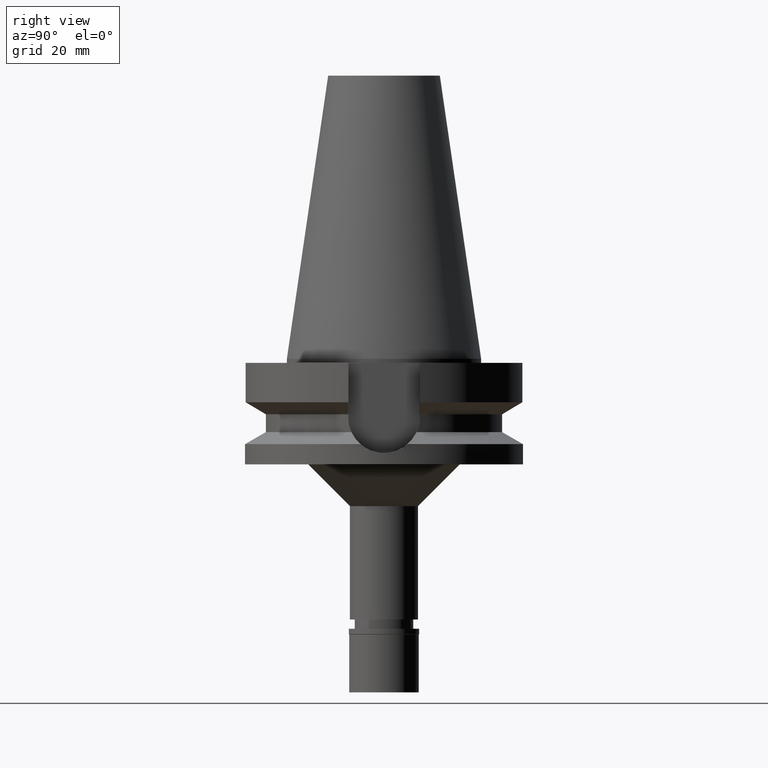
[diagram: clean part render]
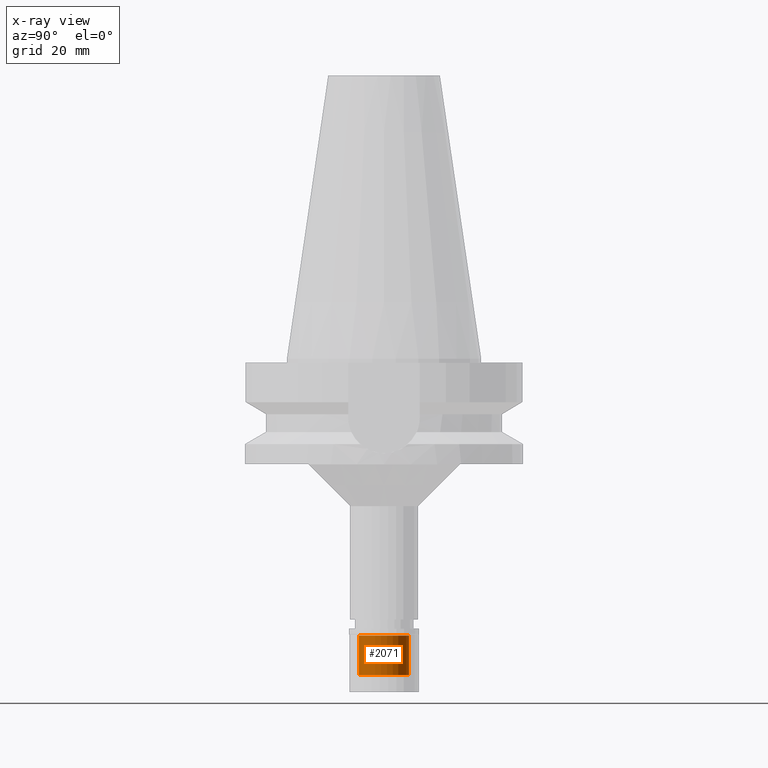
[diagram: x-ray — body ghosted, one internal face saturated and labeled with its STEP entity id]
A machine part, right view, then the same camera in x-ray: the body is ghosted and one INTERNAL B-rep face — a face not visible from any outside direction — is saturated and labeled: STEP entity #2071.
In plain terms, the highlighted cylindrical surface (edge-blend (fillet) strip) has radius 9 mm, axis along (0, 0, -1).
Its self-contained STEP definition (entity closure, byte-faithful):
#158 = DIRECTION ( 'NONE',  ( 0.0000000000000000000, -1.000000000000000000, 0.0000000000000000000 ) ) ;
#159 = ORIENTED_EDGE ( 'NONE', *, *, #2416, .F. ) ;
#241 = CIRCLE ( 'NONE', #1516, 9.000000000000000000 ) ;
#279 = VECTOR ( 'NONE', #1434, 1000.000000000000000 ) ;
#290 = AXIS2_PLACEMENT_3D ( 'NONE', #928, #2870, #158 ) ;
#360 = VERTEX_POINT ( 'NONE', #1328 ) ;
#474 = CARTESIAN_POINT ( 'NONE',  ( 0.0000000000000000000, -9.000000000000000000, -16.69999999999999929 ) ) ;
#540 = ORIENTED_EDGE ( 'NONE', *, *, #2232, .T. ) ;
#569 = EDGE_CURVE ( 'NONE', #360, #1332, #1683, .T. ) ;
#691 = CARTESIAN_POINT ( 'NONE',  ( 0.0000000000000000000, 9.000000000000000000, -16.69999999999999929 ) ) ;
#759 = FACE_OUTER_BOUND ( 'NONE', #883, .T. ) ;
#883 = EDGE_LOOP ( 'NONE', ( #540, #1540, #2649, #159 ) ) ;
#896 = VECTOR ( 'NONE', #1180, 1000.000000000000000 ) ;
#928 = CARTESIAN_POINT ( 'NONE',  ( 0.0000000000000000000, 0.0000000000000000000, -2.500000000000000000 ) ) ;
#1048 = DIRECTION ( 'NONE',  ( 0.0000000000000000000, 0.0000000000000000000, -1.000000000000000000 ) ) ;
#1093 = CARTESIAN_POINT ( 'NONE',  ( 0.0000000000000000000, 0.0000000000000000000, -16.69999999999999929 ) ) ;
#1155 = CIRCLE ( 'NONE', #290, 9.000000000000000000 ) ;
#1180 = DIRECTION ( 'NONE',  ( 0.0000000000000000000, 0.0000000000000000000, 1.000000000000000000 ) ) ;
#1328 = CARTESIAN_POINT ( 'NONE',  ( 0.0000000000000000000, -9.000000000000000000, -16.69999999999999929 ) ) ;
#1332 = VERTEX_POINT ( 'NONE', #1525 ) ;
#1434 = DIRECTION ( 'NONE',  ( 0.0000000000000000000, 0.0000000000000000000, 1.000000000000000000 ) ) ;
#1477 = VERTEX_POINT ( 'NONE', #2113 ) ;
#1516 = AXIS2_PLACEMENT_3D ( 'NONE', #1093, #1048, #1579 ) ;
#1525 = CARTESIAN_POINT ( 'NONE',  ( 0.0000000000000000000, -9.000000000000000000, -2.500000000000000000 ) ) ;
#1540 = ORIENTED_EDGE ( 'NONE', *, *, #569, .T. ) ;
#1579 = DIRECTION ( 'NONE',  ( 0.0000000000000000000, 1.000000000000000000, 0.0000000000000000000 ) ) ;
#1683 = LINE ( 'NONE', #474, #279 ) ;
#1755 = CYLINDRICAL_SURFACE ( 'NONE', #2982, 9.000000000000000000 ) ;
#1909 = EDGE_CURVE ( 'NONE', #1332, #1477, #1155, .T. ) ;
#2071 = ADVANCED_FACE ( 'NONE', ( #759 ), #1755, .F. ) ;
#2113 = CARTESIAN_POINT ( 'NONE',  ( 0.0000000000000000000, 9.000000000000000000, -2.500000000000000000 ) ) ;
#2188 = VERTEX_POINT ( 'NONE', #3007 ) ;
#2232 = EDGE_CURVE ( 'NONE', #2188, #360, #241, .T. ) ;
#2416 = EDGE_CURVE ( 'NONE', #2188, #1477, #2609, .T. ) ;
#2445 = DIRECTION ( 'NONE',  ( 0.0000000000000000000, 0.0000000000000000000, -1.000000000000000000 ) ) ;
#2609 = LINE ( 'NONE', #691, #896 ) ;
#2649 = ORIENTED_EDGE ( 'NONE', *, *, #1909, .T. ) ;
#2650 = CARTESIAN_POINT ( 'NONE',  ( 0.0000000000000000000, 0.0000000000000000000, 0.0000000000000000000 ) ) ;
#2870 = DIRECTION ( 'NONE',  ( 0.0000000000000000000, 0.0000000000000000000, 1.000000000000000000 ) ) ;
#2982 = AXIS2_PLACEMENT_3D ( 'NONE', #2650, #2445, #3133 ) ;
#3007 = CARTESIAN_POINT ( 'NONE',  ( 0.0000000000000000000, 9.000000000000000000, -16.69999999999999929 ) ) ;
#3133 = DIRECTION ( 'NONE',  ( 0.0000000000000000000, -1.000000000000000000, 0.0000000000000000000 ) ) ;